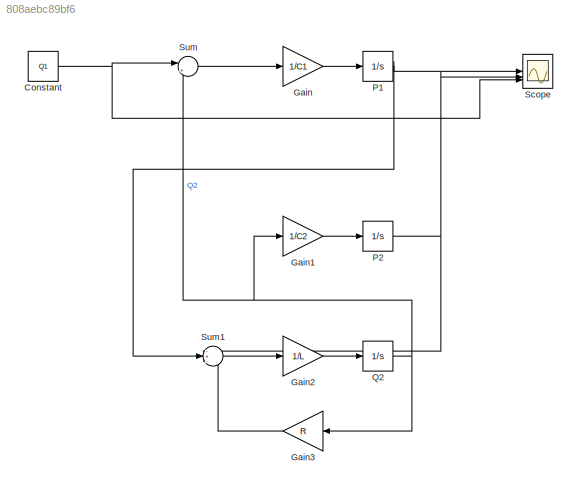
MODEL slx_808aebc89bf6
KIND model
CONFIG AbsTol = auto
CONFIG EnableMultiTasking = off
CONFIG FixedStep = auto
CONFIG MaxStep = auto
CONFIG MinStep = auto
CONFIG RelTol = 1e-3
CONFIG SampleTimeConstraint = Unconstrained
CONFIG SolverName = VariableStepAuto
CONFIG StartTime = 0.0
CONFIG StopTime = 150 
BLOCK [Constant] Constant
  Value = Q1
BLOCK [Gain] Gain
  Gain = 1/C1
BLOCK [Gain] Gain1
  Gain = 1/C2
BLOCK [Gain] Gain2
  Gain = 1/L
BLOCK [Gain] Gain3
  Gain = R
  NameLocation = top
BLOCK [Integrator] P1
BLOCK [Integrator] P2
BLOCK [Integrator] Q2
BLOCK [Scope] Scope
  Floating = off
  NumInputPorts = 3
  ScopeSpecificationString = Simulink.scopes.TimeScopeBlockCfg('CurrentConfiguration', extmgr.ConfigurationSet(extmgr.Configuration('Core','General UI',true),extmgr.Configuration('Core','Source UI',true),extmgr.Configuration('Sources','WiredSimulink',true),extmgr.Configuration('Visuals','Time Domain',true,'SerializedDisplays',{struct('MinYLimReal','-6.38598','MaxYLimReal','57.47386','YLabelReal','','MinYLimMag','0.00000','Max...<+1342ch>
BLOCK [Sum] Sum
  Inputs = |+-
BLOCK [Sum] Sum1
  Inputs = -+-
NET Constant:1 -> Scope:3, Sum:1
LINE Gain1:1 -> P2:1
LINE Gain2:1 -> Q2:1
LINE Gain3:1 -> Sum1:3
LINE Gain:1 -> P1:1
NET P1:1 -> Scope:1, Sum1:2
NET P2:1 -> Scope:2, Sum1:1
NET Q2:1 -> Gain1:1, Gain3:1, Sum:2
LINE Sum1:1 -> Gain2:1
LINE Sum:1 -> Gain:1
note: NET lines group one-source signal fan-out (src -> all destinations, sorted); 1:1 wires keep LINE
